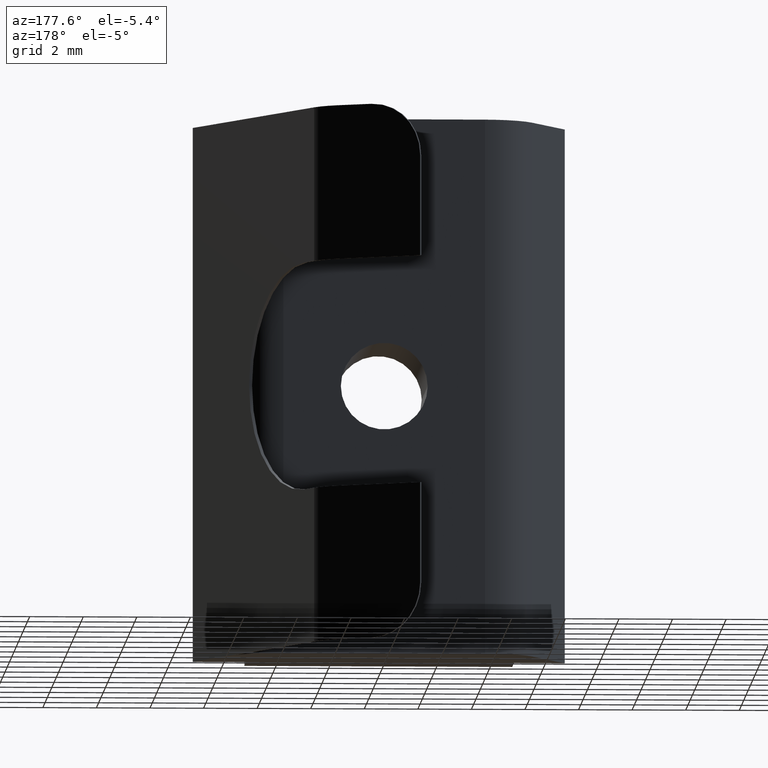
[diagram: clean part render]
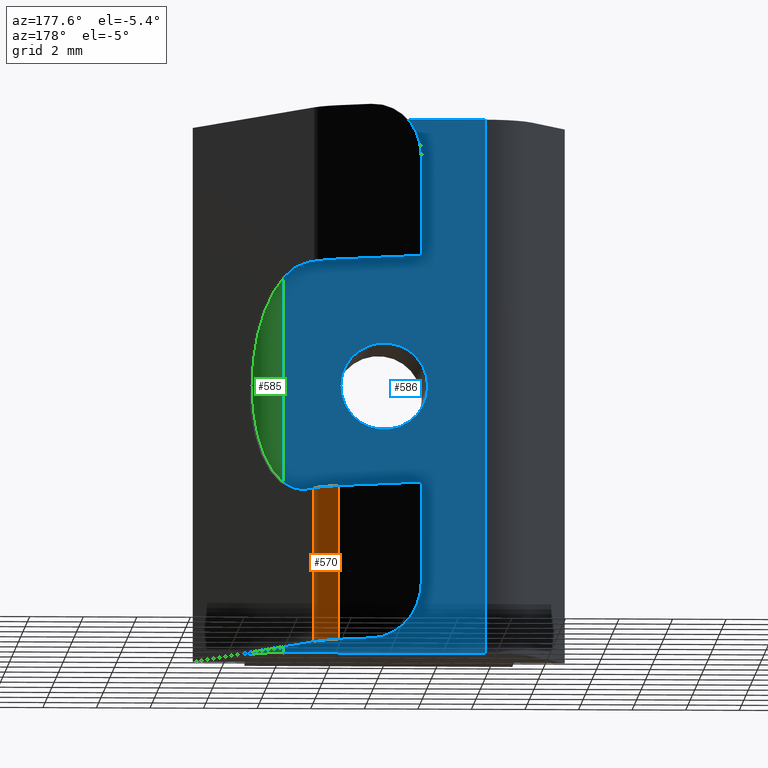
[diagram: same view with three faces highlighted in distinct colors, each labeled with its STEP entity id]
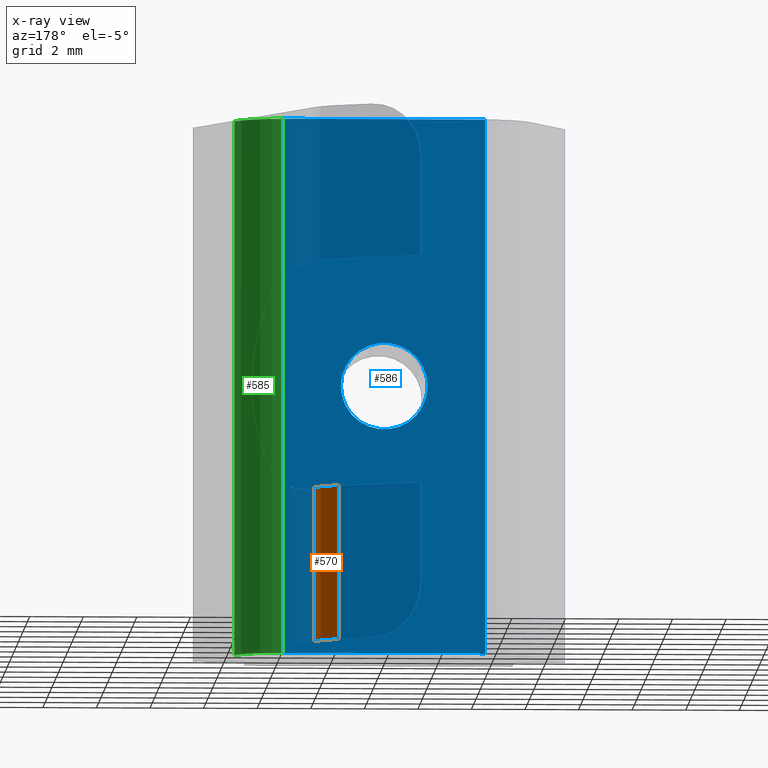
[diagram: x-ray of the same camera — body ghosted, the three highlighted faces saturated]
A machine part, auxiliary view with three faces highlighted in distinct colors.
The next image is the same camera in x-ray (body ghosted, the three faces saturated) — at least one of them is partly hidden behind the body in this view.
Their STEP definitions:

[orange] entity #570 — the highlighted cylindrical surface (partial cylindrical patch) has radius 2 mm, axis along (0, 0, 1).
#43=FACE_OUTER_BOUND('',#73,.T.);
#73=EDGE_LOOP('',(#420,#421,#422,#423));
#118=LINE('',#896,#182);
#119=LINE('',#899,#183);
#182=VECTOR('',#713,10.);
#183=VECTOR('',#716,10.);
#232=CIRCLE('',#625,2.);
#236=CIRCLE('',#631,2.);
#258=VERTEX_POINT('',#856);
#260=VERTEX_POINT('',#859);
#270=VERTEX_POINT('',#895);
#271=VERTEX_POINT('',#897);
#316=EDGE_CURVE('',#260,#258,#232,.T.);
#330=EDGE_CURVE('',#258,#270,#118,.T.);
#331=EDGE_CURVE('',#270,#271,#236,.T.);
#332=EDGE_CURVE('',#271,#260,#119,.T.);
#420=ORIENTED_EDGE('',*,*,#316,.T.);
#421=ORIENTED_EDGE('',*,*,#330,.T.);
#422=ORIENTED_EDGE('',*,*,#331,.T.);
#423=ORIENTED_EDGE('',*,*,#332,.T.);
#557=CYLINDRICAL_SURFACE('',#630,2.);
#570=ADVANCED_FACE('',(#43),#557,.T.);
#625=AXIS2_PLACEMENT_3D('',#860,#691,#692);
#630=AXIS2_PLACEMENT_3D('',#894,#711,#712);
#631=AXIS2_PLACEMENT_3D('',#898,#714,#715);
#691=DIRECTION('center_axis',(0.,5.35863314309216E-16,-1.));
#692=DIRECTION('ref_axis',(0.709848187401337,0.704354705275003,0.));
#711=DIRECTION('center_axis',(0.,0.,1.));
#712=DIRECTION('ref_axis',(0.709848187401337,0.704354705275003,0.));
#713=DIRECTION('',(0.,0.,-1.));
#714=DIRECTION('center_axis',(0.,0.,1.));
#715=DIRECTION('ref_axis',(0.709848187401337,0.704354705275003,0.));
#716=DIRECTION('',(0.,0.,1.));
#856=CARTESIAN_POINT('',(2.81159369843194,8.4004194008861,5.75));
#859=CARTESIAN_POINT('',(1.93103694289108,9.28784389332367,5.75));
#860=CARTESIAN_POINT('Origin',(1.02273931643211,7.50599220988618,5.75));
#894=CARTESIAN_POINT('Origin',(1.02273931643211,7.50599220988618,0.));
#895=CARTESIAN_POINT('',(2.81159369843194,8.4004194008861,0.));
#896=CARTESIAN_POINT('',(2.81159369843194,8.4004194008861,0.));
#897=CARTESIAN_POINT('',(1.93103694289108,9.28784389332367,0.));
#898=CARTESIAN_POINT('Origin',(1.02273931643211,7.50599220988618,0.));
#899=CARTESIAN_POINT('',(1.93103694289108,9.28784389332367,0.));

[blue] entity #586 — the highlighted planar face has unit normal (0, 1, 0).
#15=FACE_BOUND('',#90,.T.);
#30=PLANE('',#657);
#59=FACE_OUTER_BOUND('',#89,.T.);
#89=EDGE_LOOP('',(#505,#506,#507,#508));
#90=EDGE_LOOP('',(#509));
#138=LINE('',#951,#202);
#149=LINE('',#979,#213);
#150=LINE('',#982,#214);
#151=LINE('',#983,#215);
#202=VECTOR('',#769,10.);
#213=VECTOR('',#796,10.);
#214=VECTOR('',#799,10.);
#215=VECTOR('',#800,10.);
#229=CIRCLE('',#620,1.621);
#249=VERTEX_POINT('',#835);
#286=VERTEX_POINT('',#948);
#287=VERTEX_POINT('',#950);
#296=VERTEX_POINT('',#977);
#297=VERTEX_POINT('',#981);
#306=EDGE_CURVE('',#249,#249,#229,.T.);
#358=EDGE_CURVE('',#286,#287,#138,.T.);
#372=EDGE_CURVE('',#296,#286,#149,.T.);
#373=EDGE_CURVE('',#297,#296,#150,.T.);
#374=EDGE_CURVE('',#287,#297,#151,.T.);
#505=ORIENTED_EDGE('',*,*,#372,.F.);
#506=ORIENTED_EDGE('',*,*,#373,.F.);
#507=ORIENTED_EDGE('',*,*,#374,.F.);
#508=ORIENTED_EDGE('',*,*,#358,.F.);
#509=ORIENTED_EDGE('',*,*,#306,.T.);
#586=ADVANCED_FACE('',(#59,#15),#30,.T.);
#620=AXIS2_PLACEMENT_3D('',#837,#674,#675);
#657=AXIS2_PLACEMENT_3D('',#980,#797,#798);
#674=DIRECTION('center_axis',(0.,-1.,0.));
#675=DIRECTION('ref_axis',(1.,0.,0.));
#769=DIRECTION('',(-1.,0.,0.));
#796=DIRECTION('',(0.,0.,1.));
#797=DIRECTION('center_axis',(0.,1.,0.));
#798=DIRECTION('ref_axis',(-1.,0.,0.));
#799=DIRECTION('',(1.,0.,0.));
#800=DIRECTION('',(0.,0.,-1.));
#835=CARTESIAN_POINT('',(-1.621,3.8,10.));
#837=CARTESIAN_POINT('Origin',(0.,3.8,10.));
#948=CARTESIAN_POINT('',(3.76393202250021,3.8,20.));
#950=CARTESIAN_POINT('',(-3.76393202250021,3.8,20.));
#951=CARTESIAN_POINT('',(-5.,3.8,20.));
#977=CARTESIAN_POINT('',(3.76393202250021,3.8,0.));
#979=CARTESIAN_POINT('',(3.76393202250021,3.8,0.));
#980=CARTESIAN_POINT('Origin',(5.,3.8,0.));
#981=CARTESIAN_POINT('',(-3.76393202250021,3.8,0.));
#982=CARTESIAN_POINT('',(-5.,3.8,0.));
#983=CARTESIAN_POINT('',(-3.76393202250021,3.8,0.));

[green] entity #585 — the highlighted cylindrical surface (partial cylindrical patch) has radius 2 mm, axis along (0, 0, 1).
#58=FACE_OUTER_BOUND('',#88,.T.);
#88=EDGE_LOOP('',(#501,#502,#503,#504));
#115=LINE('',#890,#179);
#149=LINE('',#979,#213);
#179=VECTOR('',#708,10.);
#213=VECTOR('',#796,10.);
#243=CIRCLE('',#648,2.);
#246=CIRCLE('',#656,2.);
#267=VERTEX_POINT('',#887);
#268=VERTEX_POINT('',#889);
#286=VERTEX_POINT('',#948);
#296=VERTEX_POINT('',#977);
#327=EDGE_CURVE('',#268,#267,#115,.T.);
#357=EDGE_CURVE('',#286,#268,#243,.T.);
#371=EDGE_CURVE('',#267,#296,#246,.T.);
#372=EDGE_CURVE('',#296,#286,#149,.T.);
#501=ORIENTED_EDGE('',*,*,#357,.T.);
#502=ORIENTED_EDGE('',*,*,#327,.T.);
#503=ORIENTED_EDGE('',*,*,#371,.T.);
#504=ORIENTED_EDGE('',*,*,#372,.T.);
#563=CYLINDRICAL_SURFACE('',#655,2.);
#585=ADVANCED_FACE('',(#58),#563,.T.);
#648=AXIS2_PLACEMENT_3D('',#949,#767,#768);
#655=AXIS2_PLACEMENT_3D('',#976,#792,#793);
#656=AXIS2_PLACEMENT_3D('',#978,#794,#795);
#708=DIRECTION('',(0.,0.,-1.));
#767=DIRECTION('center_axis',(0.,0.,-1.));
#768=DIRECTION('ref_axis',(0.525731112119134,0.85065080835204,0.));
#792=DIRECTION('center_axis',(0.,0.,1.));
#793=DIRECTION('ref_axis',(0.525731112119134,0.85065080835204,0.));
#794=DIRECTION('center_axis',(0.,0.,1.));
#795=DIRECTION('ref_axis',(0.525731112119134,0.85065080835204,0.));
#796=DIRECTION('',(0.,0.,1.));
#887=CARTESIAN_POINT('',(5.55278640450004,2.69442719099992,0.));
#889=CARTESIAN_POINT('',(5.55278640450004,2.69442719099992,20.));
#890=CARTESIAN_POINT('',(5.55278640450004,2.69442719099992,0.));
#948=CARTESIAN_POINT('',(3.76393202250021,3.8,20.));
#949=CARTESIAN_POINT('Origin',(3.76393202250021,1.8,20.));
#976=CARTESIAN_POINT('Origin',(3.76393202250021,1.8,0.));
#977=CARTESIAN_POINT('',(3.76393202250021,3.8,0.));
#978=CARTESIAN_POINT('Origin',(3.76393202250021,1.8,0.));
#979=CARTESIAN_POINT('',(3.76393202250021,3.8,0.));